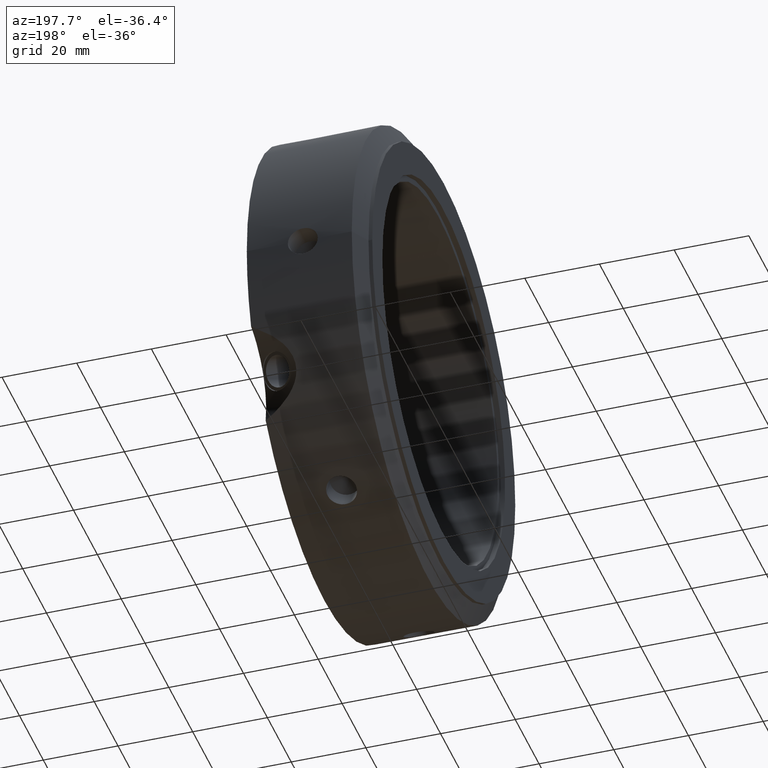
[diagram: clean part render]
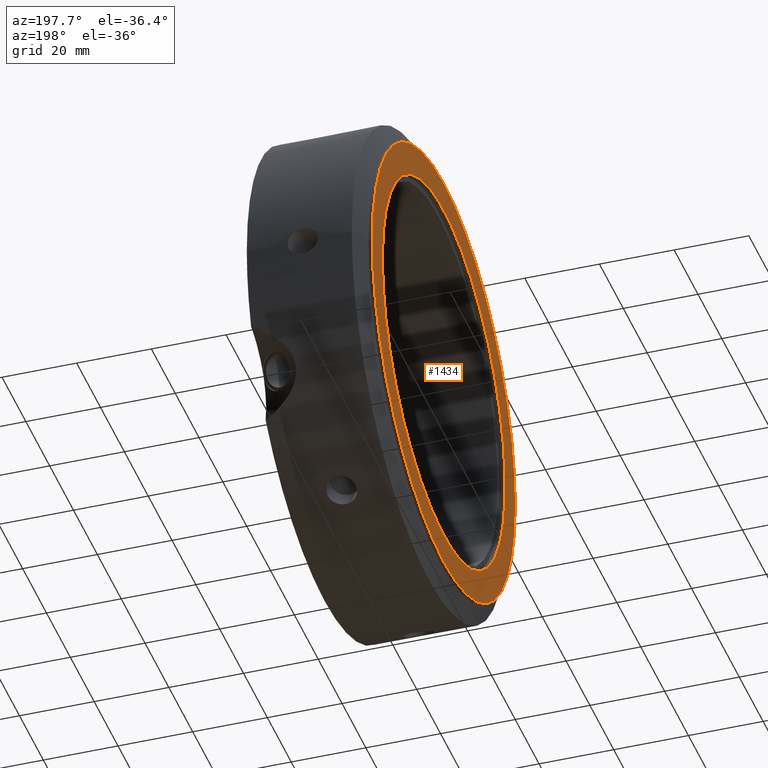
[diagram: same view with one face highlighted and labeled with its STEP entity id]
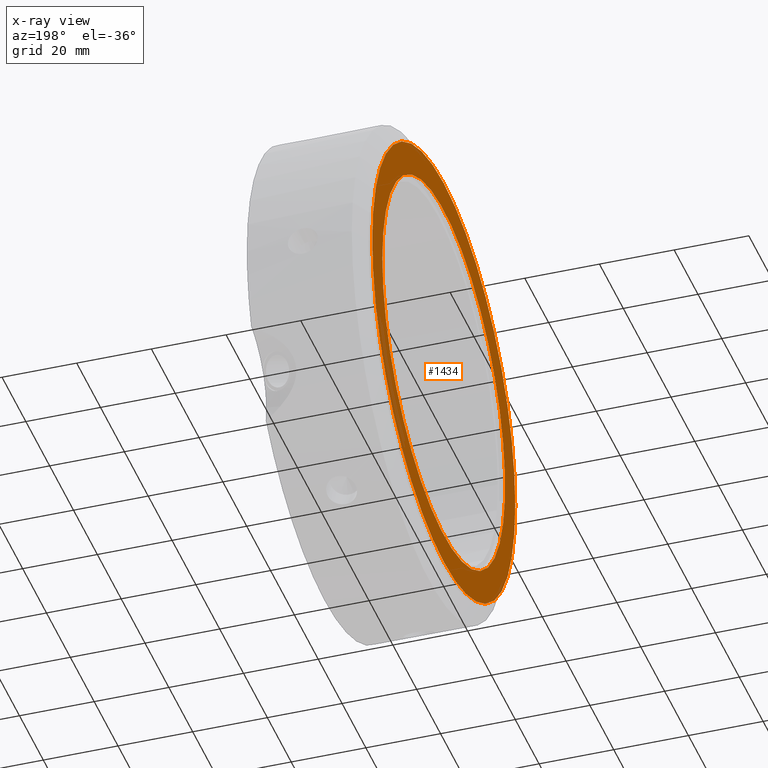
[diagram: x-ray of the same camera — body ghosted, the highlighted face saturated]
A machine part, auxiliary view. The second image highlights one B-rep face of the part: STEP entity #1434.
The next image is the same camera in x-ray: the body ghosted, the highlighted face saturated — about 0% of this face is hidden behind the body in this view.
In plain terms, the highlighted planar face has unit normal (-1, 0, 0).
Its self-contained STEP definition (entity closure, byte-faithful):
#1400=CARTESIAN_POINT('',(-1.498801E-014,51.5,0.0));
#1401=VERTEX_POINT('',#1400);
#1402=CARTESIAN_POINT('',(-1.498801E-014,0.0,0.0));
#1403=DIRECTION('',(1.0,0.0,0.0));
#1404=DIRECTION('',(0.0,1.0,0.0));
#1405=AXIS2_PLACEMENT_3D('',#1402,#1403,#1404);
#1406=CIRCLE('',#1405,51.5);
#1407=EDGE_CURVE('',#1401,#1401,#1406,.T.);
#1415=CARTESIAN_POINT('',(-1.637579E-014,55.75,0.0));
#1416=DIRECTION('',(-1.0,0.0,0.0));
#1417=DIRECTION('',(0.0,0.0,1.0));
#1418=AXIS2_PLACEMENT_3D('',#1415,#1416,#1417);
#1419=PLANE('',#1418);
#1420=CARTESIAN_POINT('',(-1.776357E-014,60.0,0.0));
#1421=VERTEX_POINT('',#1420);
#1422=CARTESIAN_POINT('',(-1.776357E-014,0.0,0.0));
#1423=DIRECTION('',(1.0,0.0,0.0));
#1424=DIRECTION('',(0.0,1.0,0.0));
#1425=AXIS2_PLACEMENT_3D('',#1422,#1423,#1424);
#1426=CIRCLE('',#1425,60.0);
#1427=EDGE_CURVE('',#1421,#1421,#1426,.T.);
#1428=ORIENTED_EDGE('',*,*,#1427,.F.);
#1429=EDGE_LOOP('',(#1428));
#1430=FACE_OUTER_BOUND('',#1429,.T.);
#1431=ORIENTED_EDGE('',*,*,#1407,.T.);
#1432=EDGE_LOOP('',(#1431));
#1433=FACE_BOUND('',#1432,.T.);
#1434=ADVANCED_FACE('',(#1430,#1433),#1419,.T.);